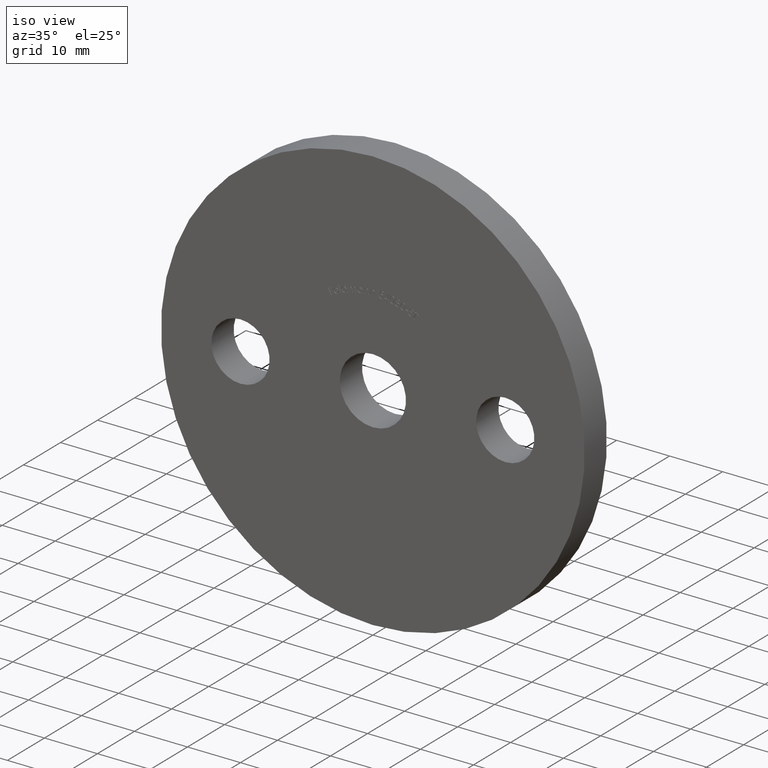
[diagram: clean part render]
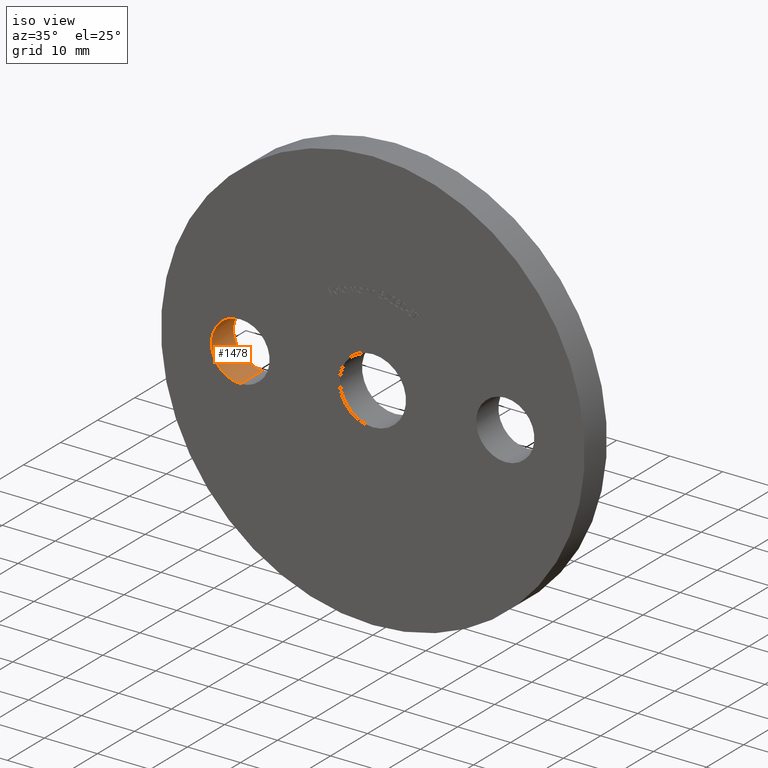
[diagram: same view with one face highlighted and labeled with its STEP entity id]
A machine part, iso view. The second image highlights one B-rep face of the part: STEP entity #1478.
In plain terms, the highlighted cylindrical surface (edge-blend (fillet) strip) has radius 5.5 mm, axis along (-0, 1, -0).
Its self-contained STEP definition (entity closure, byte-faithful):
#112 = CIRCLE ( 'NONE', #1588, 5.499999999999996400 ) ;
#347 = EDGE_CURVE ( 'NONE', #7873, #12436, #6869, .T. ) ;
#369 = FACE_OUTER_BOUND ( 'NONE', #9687, .T. ) ;
#577 = CARTESIAN_POINT ( 'NONE',  ( -25.00000000000000000, 0.0000000000000000000, 5.499999999999996400 ) ) ;
#606 = DIRECTION ( 'NONE',  ( 0.0000000000000000000, 0.0000000000000000000, 1.000000000000000000 ) ) ;
#996 = ORIENTED_EDGE ( 'NONE', *, *, #1064, .T. ) ;
#1064 = EDGE_CURVE ( 'NONE', #8807, #2236, #5949, .T. ) ;
#1478 = ADVANCED_FACE ( 'NONE', ( #369 ), #8716, .F. ) ;
#1588 = AXIS2_PLACEMENT_3D ( 'NONE', #6328, #2366, #5351 ) ;
#1703 = AXIS2_PLACEMENT_3D ( 'NONE', #2515, #12396, #606 ) ;
#1877 = AXIS2_PLACEMENT_3D ( 'NONE', #2817, #11695, #9613 ) ;
#2236 = VERTEX_POINT ( 'NONE', #2399 ) ;
#2366 = DIRECTION ( 'NONE',  ( 0.0000000000000000000, 1.000000000000000000, 0.0000000000000000000 ) ) ;
#2399 = CARTESIAN_POINT ( 'NONE',  ( -25.00000000000000000, 6.000000000000000000, -5.499999999999996400 ) ) ;
#2515 = CARTESIAN_POINT ( 'NONE',  ( -25.00000000000000000, 0.0000000000000000000, 0.0000000000000000000 ) ) ;
#2693 = ORIENTED_EDGE ( 'NONE', *, *, #3648, .F. ) ;
#2817 = CARTESIAN_POINT ( 'NONE',  ( -25.00000000000000000, 0.0000000000000000000, 0.0000000000000000000 ) ) ;
#2874 = ORIENTED_EDGE ( 'NONE', *, *, #12601, .T. ) ;
#3648 = EDGE_CURVE ( 'NONE', #8807, #7873, #7779, .T. ) ;
#5261 = CARTESIAN_POINT ( 'NONE',  ( -25.00000000000000000, 0.0000000000000000000, -5.499999999999996400 ) ) ;
#5351 = DIRECTION ( 'NONE',  ( 0.0000000000000000000, 0.0000000000000000000, 1.000000000000000000 ) ) ;
#5358 = DIRECTION ( 'NONE',  ( -0.0000000000000000000, 1.000000000000000000, -0.0000000000000000000 ) ) ;
#5949 = LINE ( 'NONE', #11265, #8417 ) ;
#6245 = VECTOR ( 'NONE', #7674, 1000.000000000000000 ) ;
#6328 = CARTESIAN_POINT ( 'NONE',  ( -25.00000000000000000, 6.000000000000000000, 0.0000000000000000000 ) ) ;
#6869 = LINE ( 'NONE', #11540, #6245 ) ;
#7088 = CARTESIAN_POINT ( 'NONE',  ( -25.00000000000000000, 6.000000000000000000, 5.499999999999996400 ) ) ;
#7674 = DIRECTION ( 'NONE',  ( -0.0000000000000000000, 1.000000000000000000, -0.0000000000000000000 ) ) ;
#7779 = CIRCLE ( 'NONE', #1703, 5.499999999999996400 ) ;
#7873 = VERTEX_POINT ( 'NONE', #577 ) ;
#8417 = VECTOR ( 'NONE', #5358, 1000.000000000000000 ) ;
#8716 = CYLINDRICAL_SURFACE ( 'NONE', #1877, 5.499999999999996400 ) ;
#8807 = VERTEX_POINT ( 'NONE', #5261 ) ;
#9613 = DIRECTION ( 'NONE',  ( 0.0000000000000000000, 0.0000000000000000000, 1.000000000000000000 ) ) ;
#9644 = ORIENTED_EDGE ( 'NONE', *, *, #347, .F. ) ;
#9687 = EDGE_LOOP ( 'NONE', ( #2693, #996, #2874, #9644 ) ) ;
#11265 = CARTESIAN_POINT ( 'NONE',  ( -25.00000000000000000, 0.0000000000000000000, -5.499999999999996400 ) ) ;
#11540 = CARTESIAN_POINT ( 'NONE',  ( -25.00000000000000000, 0.0000000000000000000, 5.499999999999996400 ) ) ;
#11695 = DIRECTION ( 'NONE',  ( -0.0000000000000000000, 1.000000000000000000, -0.0000000000000000000 ) ) ;
#12396 = DIRECTION ( 'NONE',  ( 0.0000000000000000000, 1.000000000000000000, 0.0000000000000000000 ) ) ;
#12436 = VERTEX_POINT ( 'NONE', #7088 ) ;
#12601 = EDGE_CURVE ( 'NONE', #2236, #12436, #112, .T. ) ;